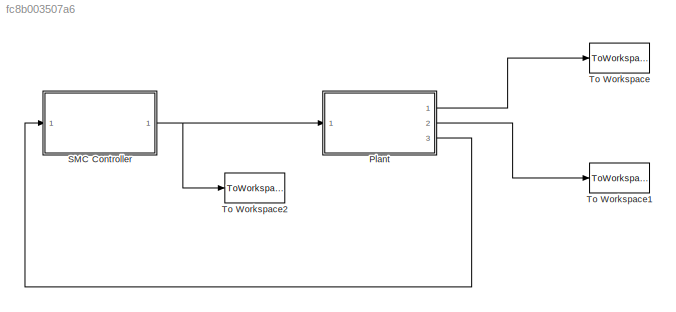
MODEL slx_fc8b003507a6
KIND model
CONFIG AbsTol = auto
CONFIG EnableMultiTasking = off
CONFIG FixedStep = auto
CONFIG MaxStep = auto
CONFIG MinStep = auto
CONFIG RelTol = 1e-3
CONFIG SampleTimeConstraint = Unconstrained
CONFIG Solver = VariableStepAuto
CONFIG SolverName = VariableStepAuto
CONFIG StartTime = 0.0
CONFIG StopTime = stoptime
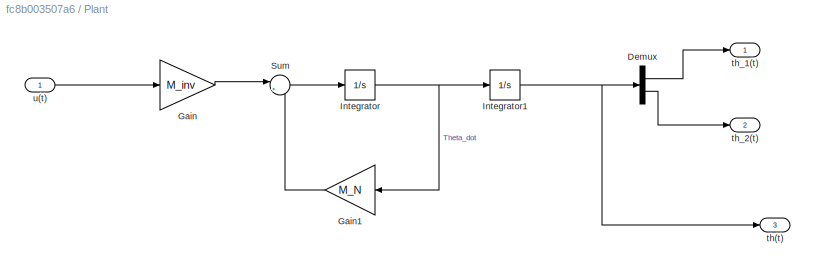
BLOCK [SubSystem] Plant
  Ports = [1, 3]
  RequestExecContextInheritance = off
BLOCK [Demux] Plant/Demux
  Outputs = 2
  Ports = [1, 2]
BLOCK [Gain] Plant/Gain
  Gain = M_inv
BLOCK [Gain] Plant/Gain1
  Gain = M_N
BLOCK [Integrator] Plant/Integrator
  InitialCondition = x0
  Ports = [1, 1]
BLOCK [Integrator] Plant/Integrator1
  InitialCondition = x0
  Ports = [1, 1]
BLOCK [Sum] Plant/Sum
  Inputs = |+-
  Ports = [2, 1]
BLOCK [Outport] Plant/th(t)
  Port = 3
  VectorParamsAs1DForOutWhenUnconnected = off
BLOCK [Outport] Plant/th_1(t)
  VectorParamsAs1DForOutWhenUnconnected = off
BLOCK [Outport] Plant/th_2(t)
  Port = 2
  VectorParamsAs1DForOutWhenUnconnected = off
BLOCK [Inport] Plant/u(t)
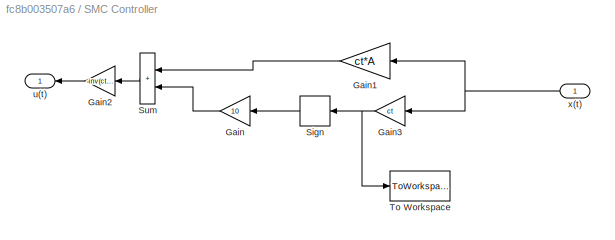
BLOCK [SubSystem] SMC Controller
  Ports = [1, 1]
  RequestExecContextInheritance = off
BLOCK [Gain] SMC Controller/Gain
  Gain = 10
BLOCK [Gain] SMC Controller/Gain1
  Gain = ct*A
  Multiplication = Matrix(K*u) (u vector)
BLOCK [Gain] SMC Controller/Gain2
  Gain = -inv(ct*b)
BLOCK [Gain] SMC Controller/Gain3
  Gain = ct
  Multiplication = Matrix(K*u) (u vector)
BLOCK [Signum] SMC Controller/Sign
  ZeroCross = off
BLOCK [Sum] SMC Controller/Sum
  IconShape = rectangular
  Ports = [2, 1]
BLOCK [ToWorkspace] SMC Controller/To Workspace
  FixptAsFi = on
  MaxDataPoints = inf
  Ports = [1]
  SampleTime = -1
  SaveFormat = Timeseries
  VariableName = sigma
BLOCK [Outport] SMC Controller/u(t)
  VectorParamsAs1DForOutWhenUnconnected = off
BLOCK [Inport] SMC Controller/x(t)
BLOCK [ToWorkspace] To Workspace
  FixptAsFi = on
  MaxDataPoints = inf
  Ports = [1]
  SampleTime = -1
  SaveFormat = Timeseries
  VariableName = x1
BLOCK [ToWorkspace] To Workspace1
  FixptAsFi = on
  MaxDataPoints = inf
  Ports = [1]
  SampleTime = -1
  SaveFormat = Timeseries
  VariableName = x2
BLOCK [ToWorkspace] To Workspace2
  FixptAsFi = on
  MaxDataPoints = inf
  Ports = [1]
  SampleTime = -1
  SaveFormat = Timeseries
  VariableName = u
LINE Plant/Demux:1 -> Plant/th_1(t):1
LINE Plant/Demux:2 -> Plant/th_2(t):1
LINE Plant/Gain1:1 -> Plant/Sum:2
LINE Plant/Gain:1 -> Plant/Sum:1
NET Plant/Integrator1:1 -> Plant/Demux:1, Plant/th(t):1
NET Plant/Integrator:1 -> Plant/Gain1:1, Plant/Integrator1:1
LINE Plant/Sum:1 -> Plant/Integrator:1
LINE Plant/u(t):1 -> Plant/Gain:1
LINE Plant:1 -> To Workspace:1
LINE Plant:2 -> To Workspace1:1
LINE Plant:3 -> SMC Controller:1
LINE SMC Controller/Gain1:1 -> SMC Controller/Sum:1
LINE SMC Controller/Gain2:1 -> SMC Controller/u(t):1
NET SMC Controller/Gain3:1 -> SMC Controller/Sign:1, SMC Controller/To Workspace:1
LINE SMC Controller/Gain:1 -> SMC Controller/Sum:2
LINE SMC Controller/Sign:1 -> SMC Controller/Gain:1
LINE SMC Controller/Sum:1 -> SMC Controller/Gain2:1
NET SMC Controller/x(t):1 -> SMC Controller/Gain1:1, SMC Controller/Gain3:1
NET SMC Controller:1 -> Plant:1, To Workspace2:1
note: NET lines group one-source signal fan-out (src -> all destinations, sorted); 1:1 wires keep LINE
